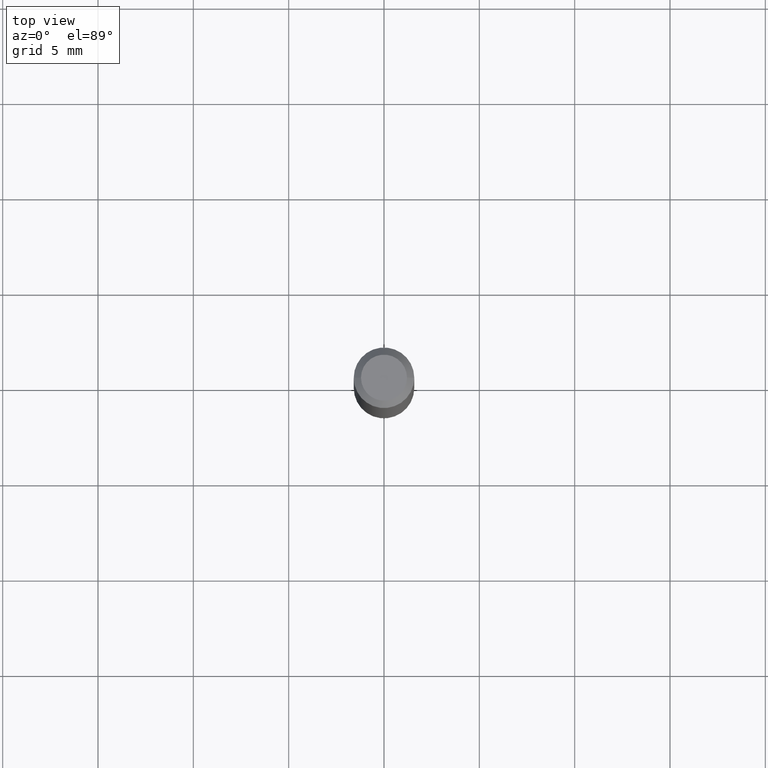
[diagram: clean part render]
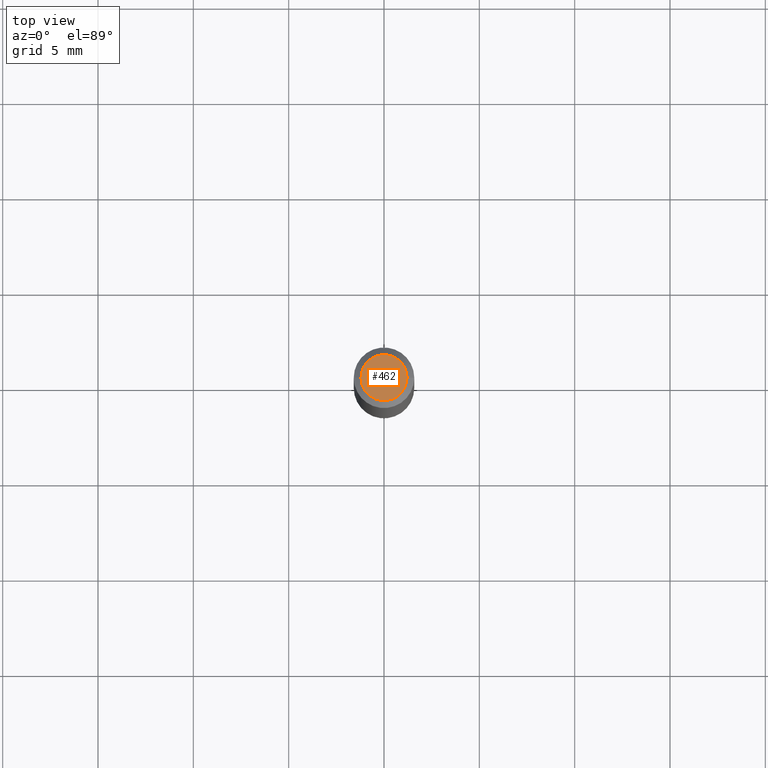
[diagram: same view with one face highlighted and labeled with its STEP entity id]
A machine part, top view. The second image highlights one B-rep face of the part: STEP entity #462.
In plain terms, the highlighted planar face has unit normal (0, -0, -1).
Its self-contained STEP definition (entity closure, byte-faithful):
#1 = ORIENTED_EDGE ( 'NONE', *, *, #448, .T. ) ;
#4 = CIRCLE ( 'NONE', #22, 0.04749999999999999362 ) ;
#22 = AXIS2_PLACEMENT_3D ( 'NONE', #258, #271, #51 ) ;
#29 = PLANE ( 'NONE',  #279 ) ;
#51 = DIRECTION ( 'NONE',  ( 1.000000000000000000, -6.982962677686267499E-15, 4.852736867747366768E-29 ) ) ;
#59 = VERTEX_POINT ( 'NONE', #114 ) ;
#71 = VERTEX_POINT ( 'NONE', #303 ) ;
#72 = DIRECTION ( 'NONE',  ( -1.000000000000000000, 6.982962677686265922E-15, -4.876176775795935793E-29 ) ) ;
#107 = DIRECTION ( 'NONE',  ( 2.438088387897960049E-29, -3.491481338843145188E-15, -1.000000000000000000 ) ) ;
#114 = CARTESIAN_POINT ( 'NONE',  ( 0.04749999999999999362, -4.035134999187566790E-16, 6.443424916547846258E-16 ) ) ;
#150 = DIRECTION ( 'NONE',  ( -2.445468806185136597E-29, 3.491481338843145583E-15, 1.000000000000000000 ) ) ;
#258 = CARTESIAN_POINT ( 'NONE',  ( -1.575719463841376315E-44, 2.249709785436367094E-30, 6.443424916547820620E-16 ) ) ;
#259 = AXIS2_PLACEMENT_3D ( 'NONE', #324, #150, #399 ) ;
#271 = DIRECTION ( 'NONE',  ( -2.445468806185136597E-29, 3.491481338843145583E-15, 1.000000000000000000 ) ) ;
#279 = AXIS2_PLACEMENT_3D ( 'NONE', #327, #107, #72 ) ;
#303 = CARTESIAN_POINT ( 'NONE',  ( -0.04749999999999999362, 3.578768372314221846E-16, 6.443424916547796954E-16 ) ) ;
#312 = ORIENTED_EDGE ( 'NONE', *, *, #424, .T. ) ;
#324 = CARTESIAN_POINT ( 'NONE',  ( -1.575719463841376315E-44, 2.249709785436367094E-30, 6.443424916547820620E-16 ) ) ;
#327 = CARTESIAN_POINT ( 'NONE',  ( 3.316907271900976096E-16, 0.04749999999999999362, 1.563258822323416346E-16 ) ) ;
#330 = CIRCLE ( 'NONE', #259, 0.04749999999999999362 ) ;
#386 = FACE_OUTER_BOUND ( 'NONE', #387, .T. ) ;
#387 = EDGE_LOOP ( 'NONE', ( #1, #312 ) ) ;
#399 = DIRECTION ( 'NONE',  ( 1.000000000000000000, -6.982962677686267499E-15, 4.852736867747366768E-29 ) ) ;
#424 = EDGE_CURVE ( 'NONE', #59, #71, #330, .T. ) ;
#448 = EDGE_CURVE ( 'NONE', #71, #59, #4, .T. ) ;
#462 = ADVANCED_FACE ( 'NONE', ( #386 ), #29, .F. ) ;